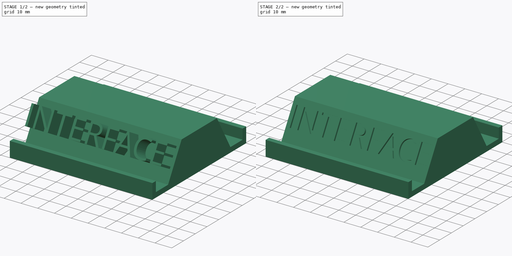
[diagram: build sequence overview — one tinted view per stage of 2, left to right]
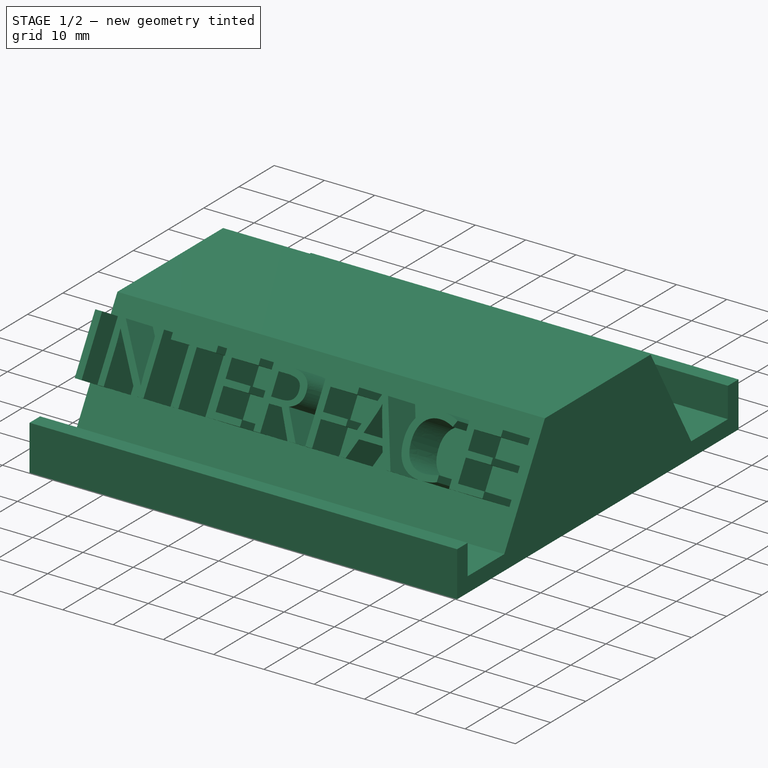
[diagram: stage 1 of 2 — iso view after this stage's code; geometry added in this stage tinted green]
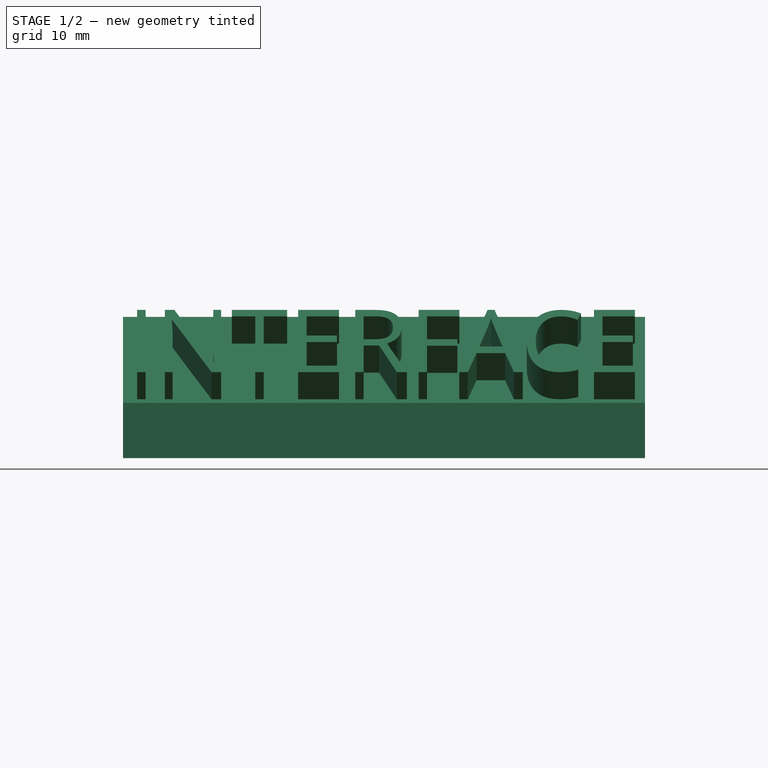
[diagram: stage 1 of 2 — front view after this stage's code; geometry added in this stage tinted green]
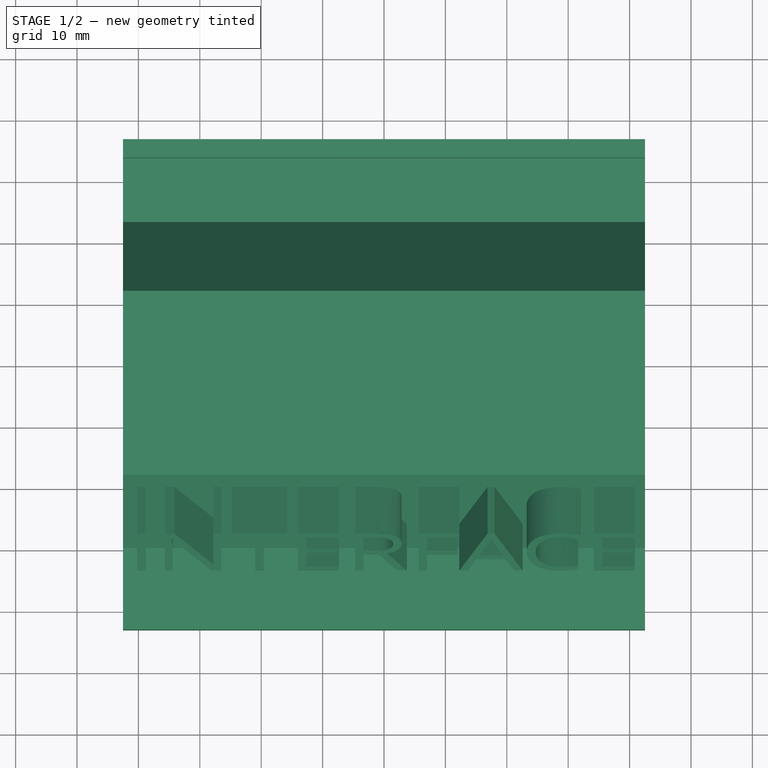
[diagram: stage 1 of 2 — top view after this stage's code; geometry added in this stage tinted green]
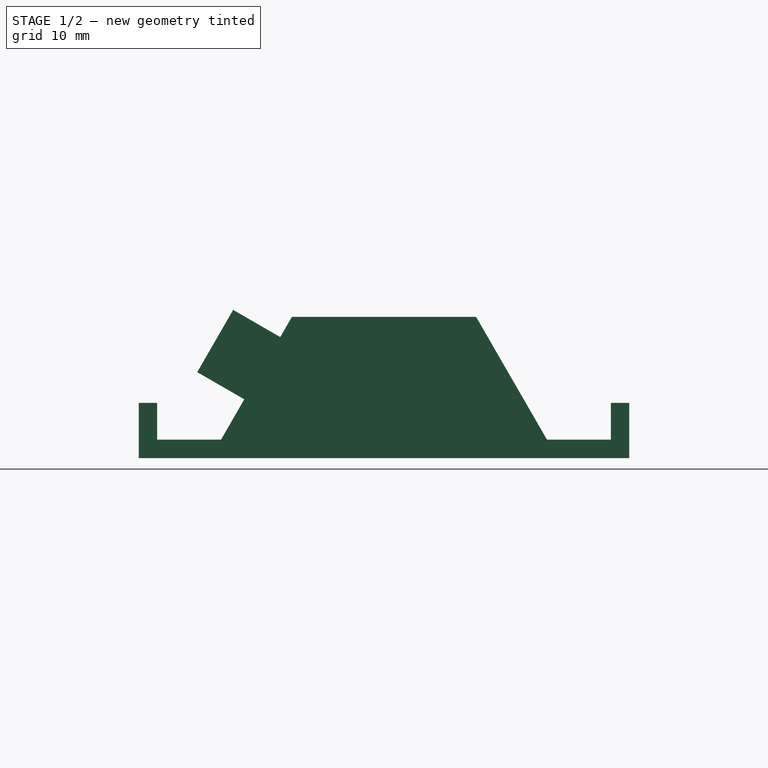
[diagram: stage 1 of 2 — right view after this stage's code; geometry added in this stage tinted green]
FCSTD DOCUMENT  (FreeCAD 0.16R)
Label: SOPORTE iNTERFACE
License: All rights reserved
LicenseURL: http://en.wikipedia.org/wiki/All_rights_reserved
objects: PartDesign::Pad×2, Part::Feature×1, Sketcher::SketchObject×1, Part::Part2DObjectPython×1, Part::Cut×1
note: 8 computed .brp shape members not serialized (recipe doc carries the construction recipe); baked Part::Feature solids carry a one-line shape summary decoded from their .brp

FEATURE [Part::Feature] Part__Feature  label="AQUARIS_5_7"
  Placement = pos=(0,43.5,74) rot=(1,0,0;1.0472rad)
  shape: bbox 82.83 x 98.22 x 190.1 mm, 294 faces (baked)
FEATURE [Sketcher::SketchObject] Sketch  label="Boceto-soporte"
  Placement = pos=(0,0,0) rot=(0.57735,0.57735,0.57735;2.0944rad)
  sketch-geometry (13):
    g0: LineSegment StartX=-3 StartY=6 StartZ=0 EndX=0 EndY=6 EndZ=0
    g1: LineSegment StartX=0 StartY=6 StartZ=0 EndX=0 EndY=0 EndZ=0
    g2: LineSegment StartX=0 StartY=0 StartZ=0 EndX=10.4 EndY=0 EndZ=0
    g3: LineSegment StartX=10.4 StartY=0 StartZ=0 EndX=21.947 EndY=20 EndZ=0
    g4: LineSegment StartX=21.947 StartY=20 StartZ=0 EndX=51.947 EndY=20 EndZ=0
    g5: LineSegment StartX=51.947 StartY=20 StartZ=0 EndX=63.494 EndY=0 EndZ=0
    g6: LineSegment StartX=63.494 StartY=0 StartZ=0 EndX=73.894 EndY=0 EndZ=0
    g7: LineSegment StartX=73.894 StartY=0 StartZ=0 EndX=73.894 EndY=6 EndZ=0
    g8: LineSegment StartX=73.894 StartY=6 StartZ=0 EndX=76.894 EndY=6 EndZ=0
    g9: LineSegment StartX=76.894 StartY=6 StartZ=0 EndX=76.894 EndY=-3 EndZ=0
    g10: LineSegment StartX=76.894 StartY=-3 StartZ=0 EndX=-3 EndY=-3 EndZ=0
    g11: LineSegment StartX=-3 StartY=-3 StartZ=0 EndX=-3 EndY=6 EndZ=0
    g12: LineSegment [constr] StartX=36.947 StartY=20 StartZ=0 EndX=36.947 EndY=0 EndZ=0
  constraints (37):
    c: Horizontal(g0)
    c: Coincident(g0,g1)
    c: Vertical(g1)
    c: Coincident(g1,g2)
    c: Horizontal(g2)
    c: Coincident(g3,g2)
    c: Angle(g3,g-1) = 2.0944
    c: DistanceX(g2) = 10.4
    c: Coincident(g1,g-1)
    c: DistanceX(g0) = 3
    c: Coincident(g3,g4)
    c: Horizontal(g4)
    c: Coincident(g4,g5)
    c: PointOnObject(g5,g-1)
    c: Coincident(g5,g6)
    c: Horizontal(g6)
    c: Coincident(g6,g7)
    c: Vertical(g7)
    c: Coincident(g7,g8)
    c: Coincident(g8,g9)
    c: Vertical(g9)
    c: Coincident(g9,g10)
    c: Horizontal(g10)
    c: Coincident(g10,g11)
    c: Vertical(g11)
    c: Coincident(g11,g0)
    c: Horizontal(g8)
    c: PointOnObject(g12,g4)
    c: PointOnObject(g12,g-1)
    c: Symmetric(g10,g9,g12)
    c: Symmetric(g3,g4,g12)
    c: Symmetric(g2,g5,g12)
    c: Symmetric(g0,g7,g12)
    c: DistanceY(g6,g9) = -3
    c: DistanceX(g4) = 30
    c: DistanceY(g4,g5) = -20
    c: DistanceY(g6,g8) = 6
FEATURE [PartDesign::Pad] Pad  label="Soporte-aquaris"
  Length = 85
  Length2 = 100
  Midplane = true
  Placement = pos=(0,0,0) rot=(0.57735,0.57735,0.57735;2.0944rad)
  Sketch = -> Sketch
  Type = 0
FEATURE [Part::Part2DObjectPython] ShapeString  # Draft 2D object (typed FeaturePython)
  FontFile = <userpath>/Descargas/OpenSans-Regular.ttf
  Placement = pos=(-41.7783,15.191,5.99771) rot=(1,0,0;1.0472rad)
  Size = 15
  String = INTERFACE
  Tracking = 0
FEATURE [PartDesign::Pad] Pad001
  Length = 10
  Length2 = 100
  Placement = pos=(-41.7783,15.191,5.99771) rot=(1,0,0;1.0472rad)
  Sketch = -> ShapeString
  Type = 0
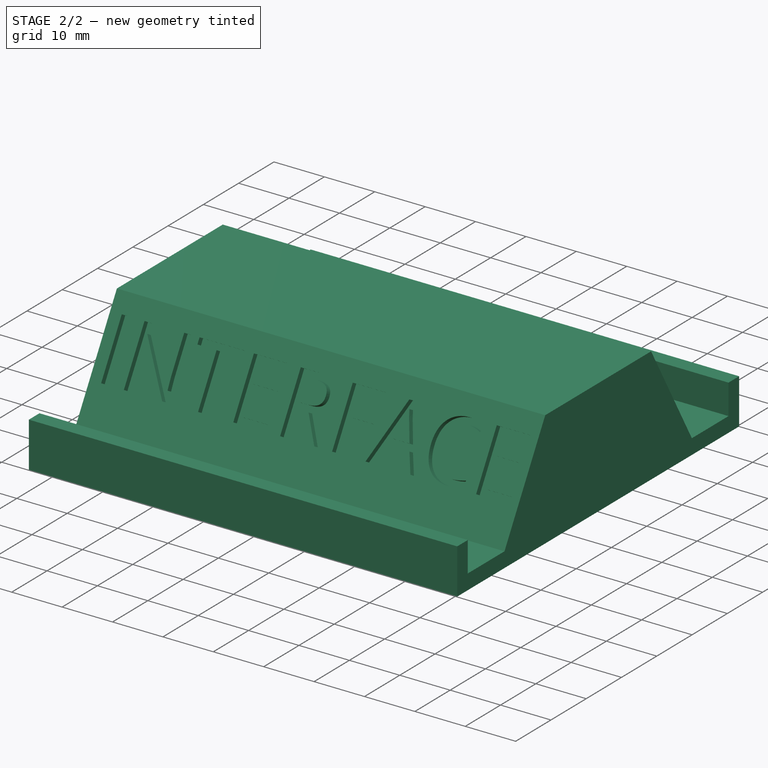
[diagram: stage 2 of 2 — iso view after this stage's code; geometry added in this stage tinted green]
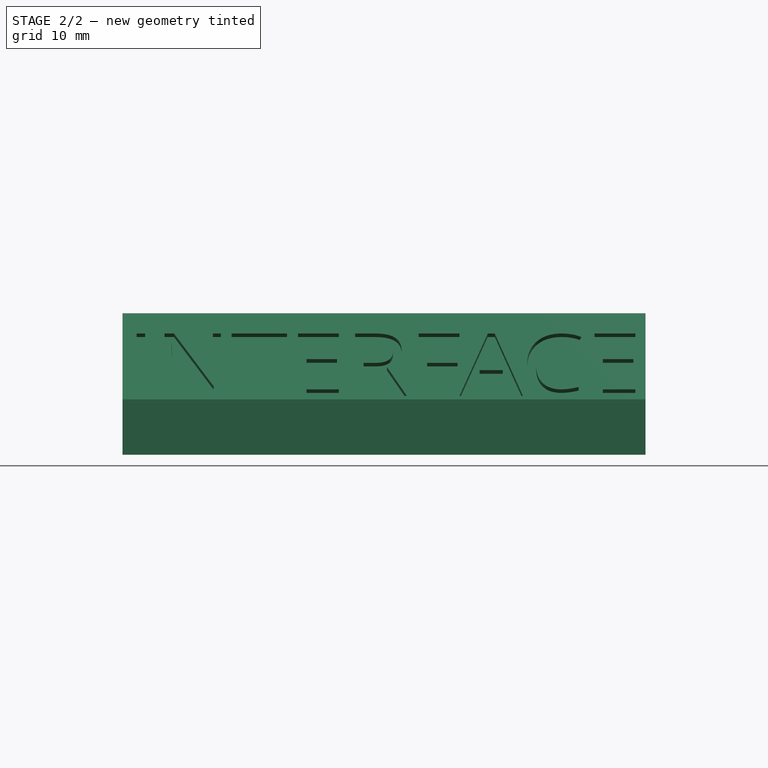
[diagram: stage 2 of 2 — front view after this stage's code; geometry added in this stage tinted green]
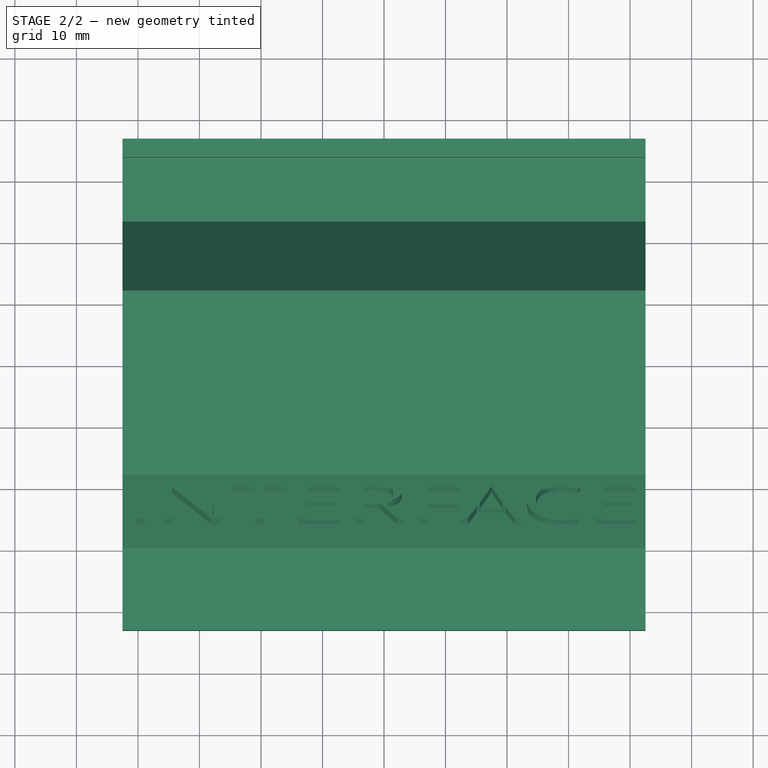
[diagram: stage 2 of 2 — top view after this stage's code; geometry added in this stage tinted green]
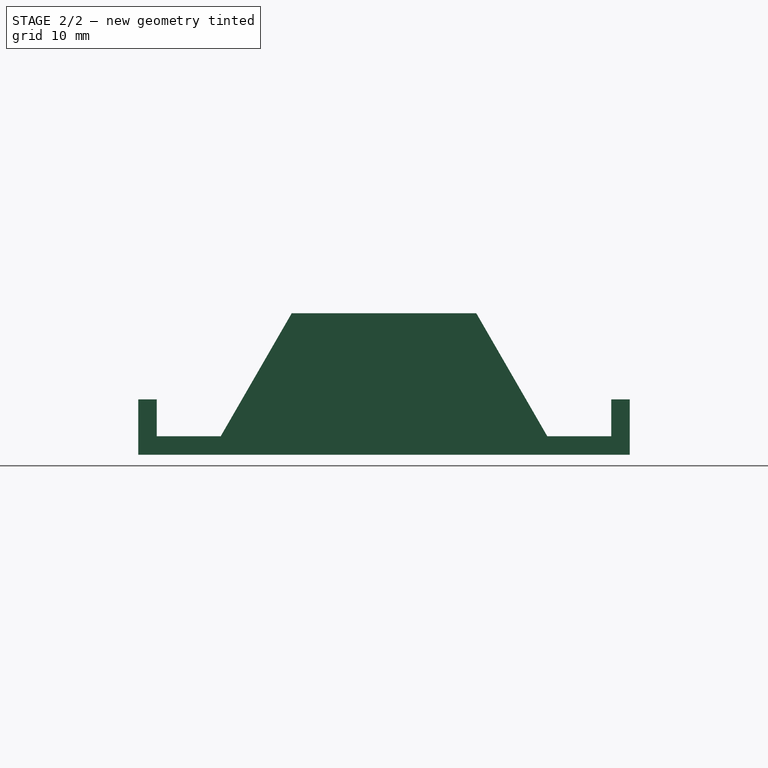
[diagram: stage 2 of 2 — right view after this stage's code; geometry added in this stage tinted green]
FEATURE [Part::Cut] Cut
  Base = -> Pad
  Tool = -> Pad001
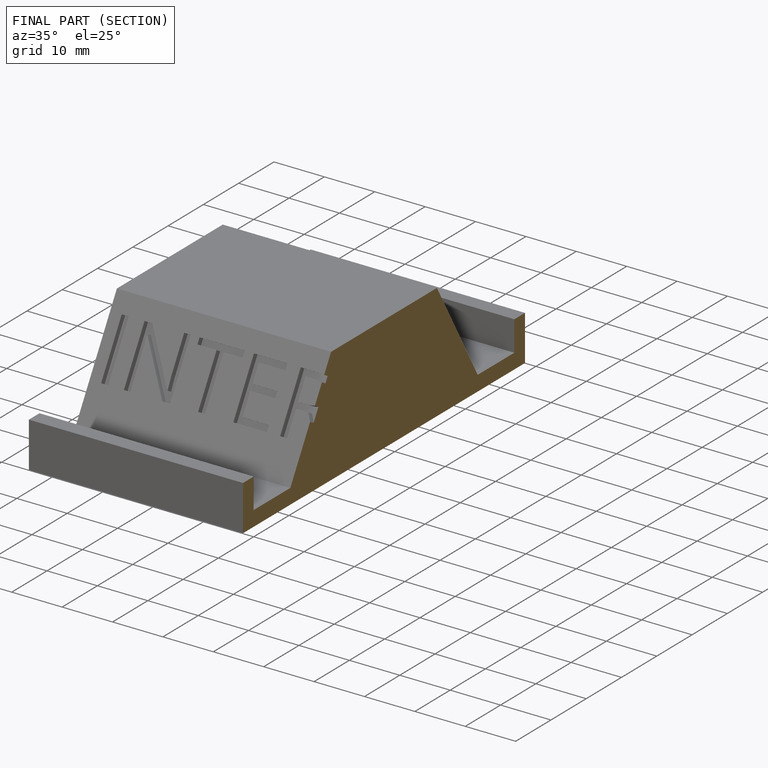
[diagram: finished part — half-section view (interior)]
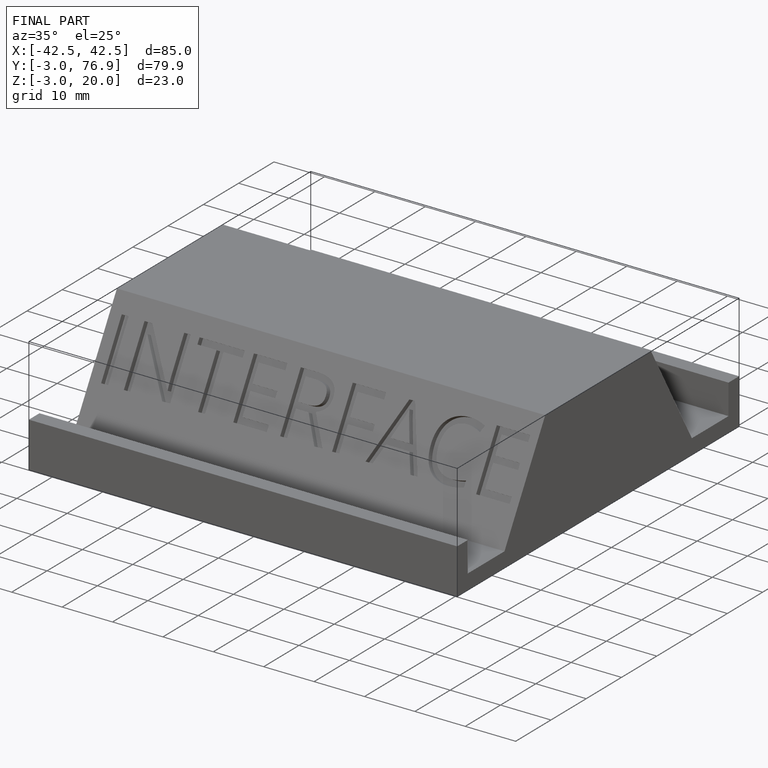
[diagram: finished part — iso view with bounding-box wireframe]
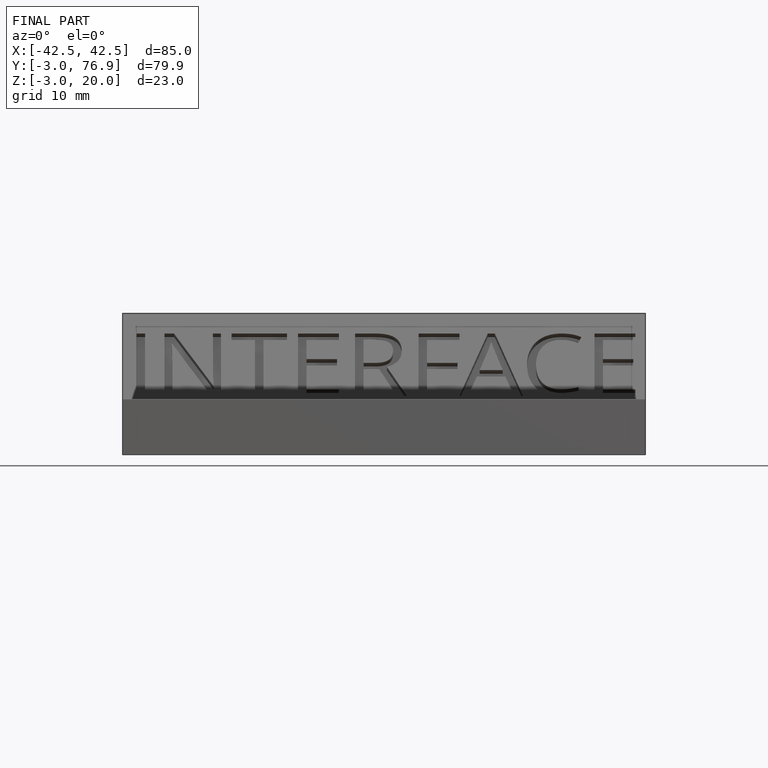
[diagram: finished part — front view with bounding-box wireframe]
